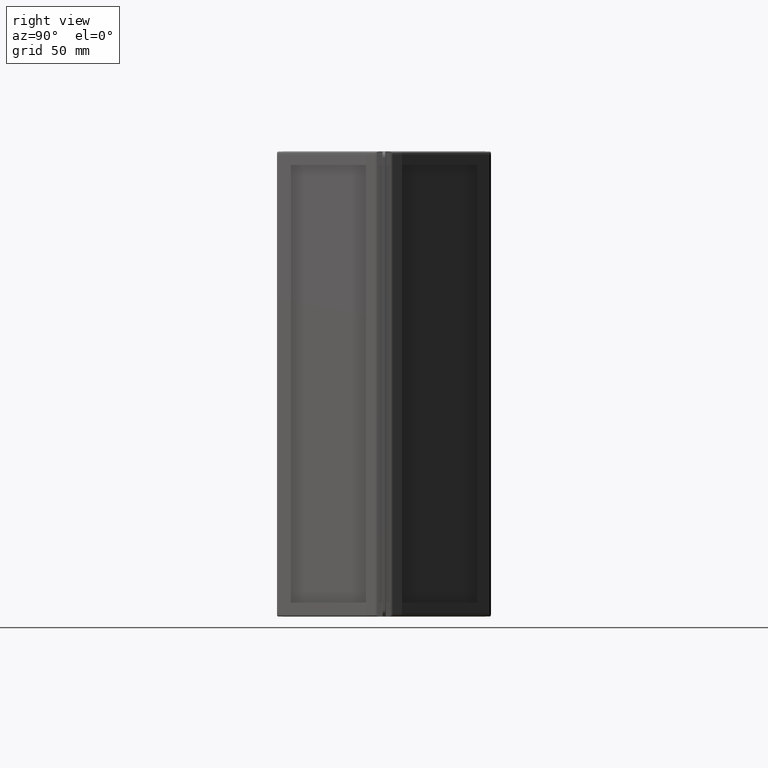
[diagram: clean part render]
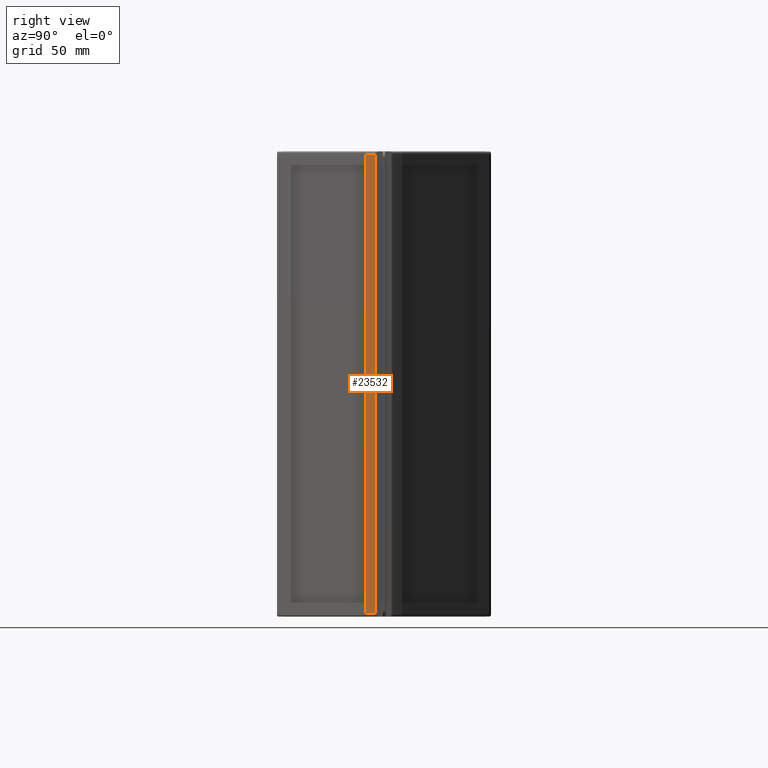
[diagram: same view with one face highlighted and labeled with its STEP entity id]
A machine part, right view. The second image highlights one B-rep face of the part: STEP entity #23532.
In plain terms, the highlighted planar face has unit normal (0.9007, -0.4344, 0).
Its self-contained STEP definition (entity closure, byte-faithful):
#1508=PLANE('',#24897);
#1955=FACE_OUTER_BOUND('',#3271,.T.);
#3271=EDGE_LOOP('',(#14983,#14984,#14985,#14986));
#4674=LINE('',#32364,#6570);
#4693=LINE('',#32414,#6589);
#4698=LINE('',#32424,#6594);
#4700=LINE('',#32427,#6596);
#6570=VECTOR('',#26814,10.);
#6589=VECTOR('',#26851,10.);
#6594=VECTOR('',#26862,10.);
#6596=VECTOR('',#26866,10.);
#9115=VERTEX_POINT('',#32361);
#9116=VERTEX_POINT('',#32363);
#9137=VERTEX_POINT('',#32411);
#9138=VERTEX_POINT('',#32413);
#11387=EDGE_CURVE('',#9116,#9115,#4674,.T.);
#11412=EDGE_CURVE('',#9138,#9137,#4693,.T.);
#11418=EDGE_CURVE('',#9137,#9116,#4698,.T.);
#11420=EDGE_CURVE('',#9138,#9115,#4700,.T.);
#14983=ORIENTED_EDGE('',*,*,#11387,.T.);
#14984=ORIENTED_EDGE('',*,*,#11420,.F.);
#14985=ORIENTED_EDGE('',*,*,#11412,.T.);
#14986=ORIENTED_EDGE('',*,*,#11418,.T.);
#23532=ADVANCED_FACE('',(#1955),#1508,.T.);
#24897=AXIS2_PLACEMENT_3D('',#32426,#26864,#26865);
#26814=DIRECTION('',(0.43444525757777,0.900698239238972,0.));
#26851=DIRECTION('',(-0.43444525757777,-0.900698239238972,0.));
#26862=DIRECTION('',(0.,0.,-1.));
#26864=DIRECTION('center_axis',(0.900698239238972,-0.43444525757777,0.));
#26865=DIRECTION('ref_axis',(0.,0.,-1.));
#26866=DIRECTION('',(0.,0.,-1.));
#32361=CARTESIAN_POINT('',(158.064531410996,-5.60893266779497,1.95000000000004));
#32363=CARTESIAN_POINT('',(155.174783576228,-11.5999999915176,1.95000000000004));
#32364=CARTESIAN_POINT('',(158.064531410996,-5.60893266779497,1.94999999999999));
#32411=CARTESIAN_POINT('',(155.174783576228,-11.5999999915176,297.95));
#32413=CARTESIAN_POINT('',(158.064531410996,-5.60893266779497,297.95));
#32414=CARTESIAN_POINT('',(158.064531410996,-5.60893266779497,297.95));
#32424=CARTESIAN_POINT('',(155.174783576228,-11.5999999915176,149.95));
#32426=CARTESIAN_POINT('Origin',(155.174783576228,-11.5999999915176,149.95));
#32427=CARTESIAN_POINT('',(158.064531410996,-5.60893266779497,149.95));